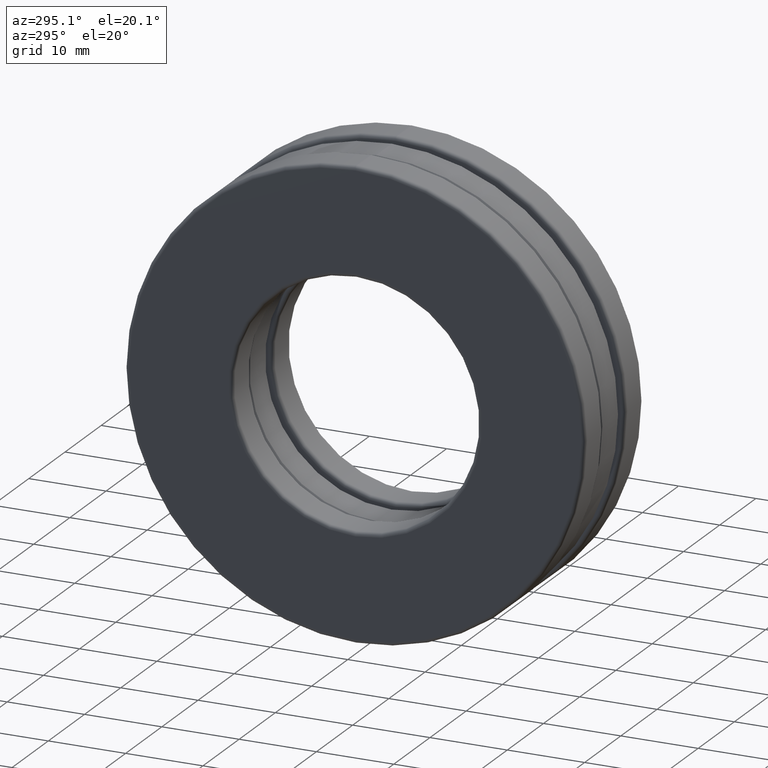
[diagram: clean part render]
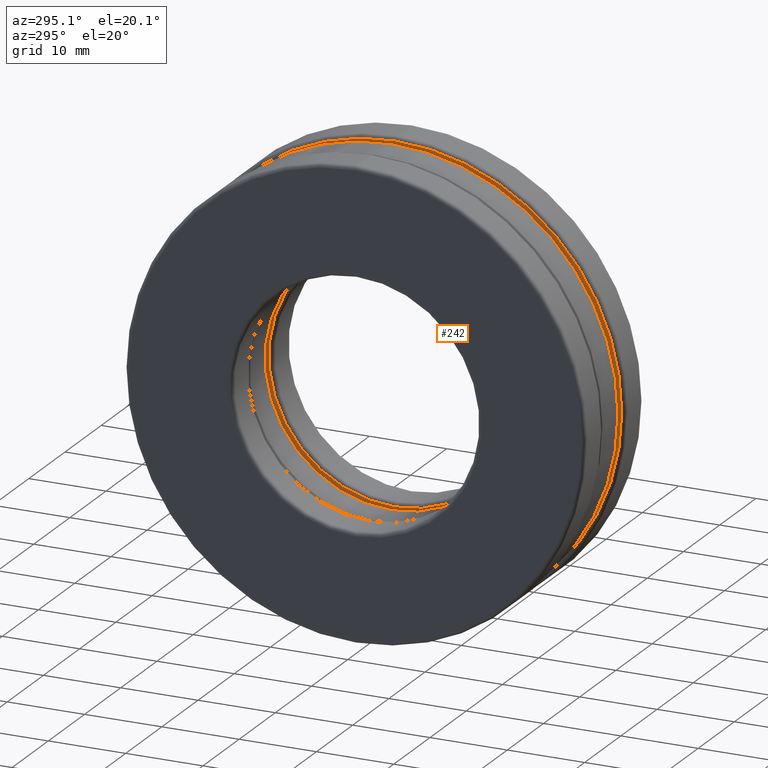
[diagram: same view with one face highlighted and labeled with its STEP entity id]
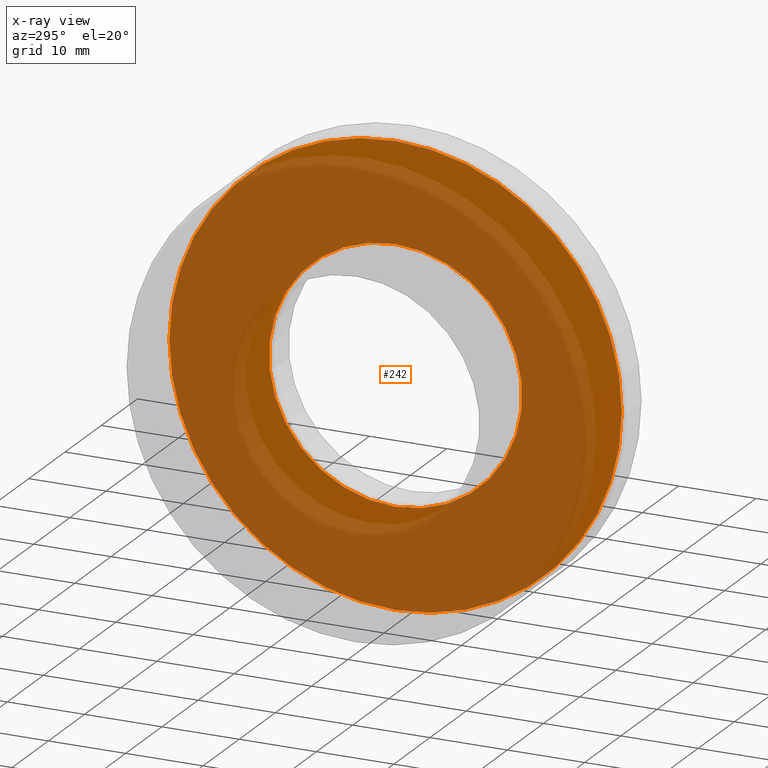
[diagram: x-ray of the same camera — body ghosted, the highlighted face saturated]
A machine part, auxiliary view. The second image highlights one B-rep face of the part: STEP entity #242.
The next image is the same camera in x-ray: the body ghosted, the highlighted face saturated — about 80% of this face is hidden behind the body in this view.
In plain terms, the highlighted planar face has unit normal (1, 0, 0).
Its self-contained STEP definition (entity closure, byte-faithful):
#5 = CIRCLE ( 'NONE', #16, 0.6450000000000001300 ) ;
#16 = AXIS2_PLACEMENT_3D ( 'NONE', #292, #1421, #863 ) ;
#111 = DIRECTION ( 'NONE',  ( -1.000000000000000000, -0.0000000000000000000, -0.0000000000000000000 ) ) ;
#155 = CARTESIAN_POINT ( 'NONE',  ( 0.1250000000000000000, 0.0000000000000000000, 0.0000000000000000000 ) ) ;
#238 = CARTESIAN_POINT ( 'NONE',  ( 0.1250000000000000000, 0.0000000000000000000, 0.6450000000000001300 ) ) ;
#242 = ADVANCED_FACE ( 'NONE', ( #1125, #1243 ), #1399, .F. ) ;
#292 = CARTESIAN_POINT ( 'NONE',  ( 0.1250000000000000000, 0.0000000000000000000, 0.0000000000000000000 ) ) ;
#429 = DIRECTION ( 'NONE',  ( 0.0000000000000000000, 0.0000000000000000000, 1.000000000000000000 ) ) ;
#444 = CARTESIAN_POINT ( 'NONE',  ( 0.1250000000000000000, 0.0000000000000000000, 0.0000000000000000000 ) ) ;
#484 = VERTEX_POINT ( 'NONE', #238 ) ;
#593 = AXIS2_PLACEMENT_3D ( 'NONE', #444, #111, #429 ) ;
#714 = EDGE_LOOP ( 'NONE', ( #913 ) ) ;
#756 = CIRCLE ( 'NONE', #593, 1.151875000000000200 ) ;
#861 = ORIENTED_EDGE ( 'NONE', *, *, #1419, .T. ) ;
#863 = DIRECTION ( 'NONE',  ( 0.0000000000000000000, 0.0000000000000000000, 1.000000000000000000 ) ) ;
#913 = ORIENTED_EDGE ( 'NONE', *, *, #1045, .F. ) ;
#936 = CARTESIAN_POINT ( 'NONE',  ( 0.1250000000000000000, 0.0000000000000000000, 1.151875000000000200 ) ) ;
#945 = DIRECTION ( 'NONE',  ( 1.000000000000000000, 0.0000000000000000000, 0.0000000000000000000 ) ) ;
#988 = VERTEX_POINT ( 'NONE', #936 ) ;
#1045 = EDGE_CURVE ( 'NONE', #484, #484, #5, .T. ) ;
#1096 = AXIS2_PLACEMENT_3D ( 'NONE', #155, #945, #1433 ) ;
#1125 = FACE_BOUND ( 'NONE', #714, .T. ) ;
#1243 = FACE_OUTER_BOUND ( 'NONE', #1467, .T. ) ;
#1399 = PLANE ( 'NONE',  #1096 ) ;
#1419 = EDGE_CURVE ( 'NONE', #988, #988, #756, .T. ) ;
#1421 = DIRECTION ( 'NONE',  ( -1.000000000000000000, -0.0000000000000000000, -0.0000000000000000000 ) ) ;
#1433 = DIRECTION ( 'NONE',  ( 0.0000000000000000000, 0.0000000000000000000, -1.000000000000000000 ) ) ;
#1467 = EDGE_LOOP ( 'NONE', ( #861 ) ) ;